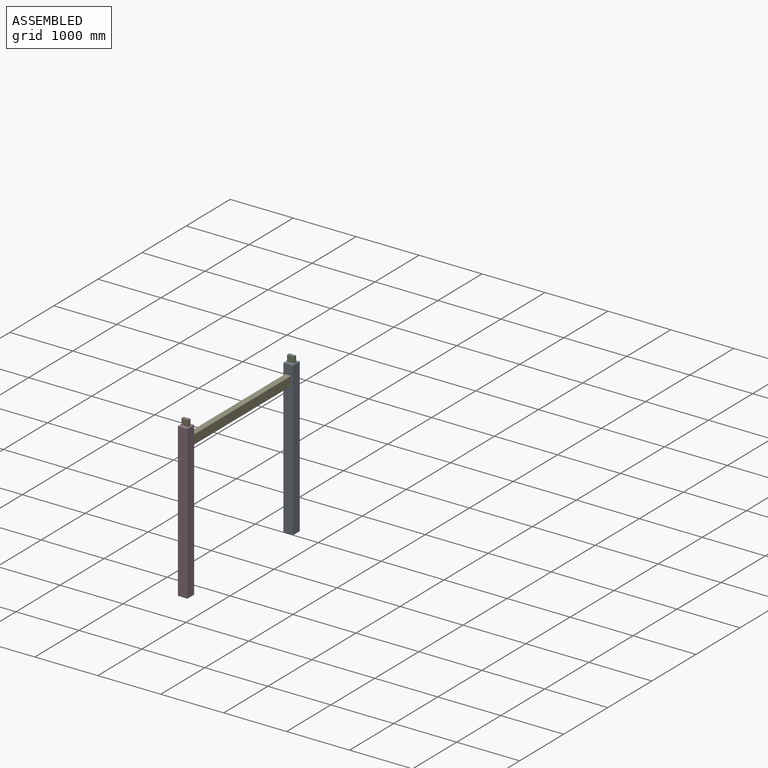
[diagram: assembled view]
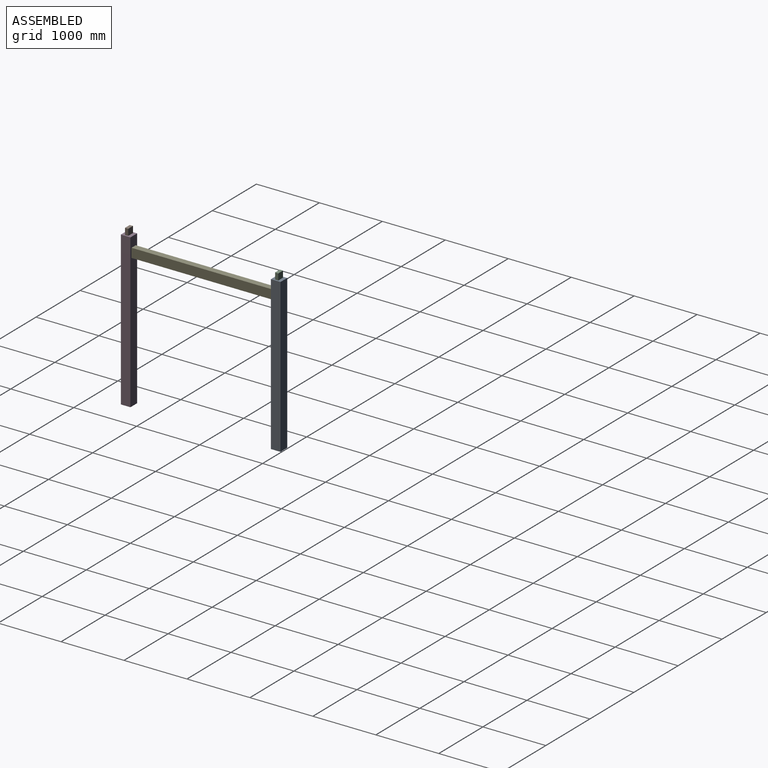
[diagram: assembled view, second angle]
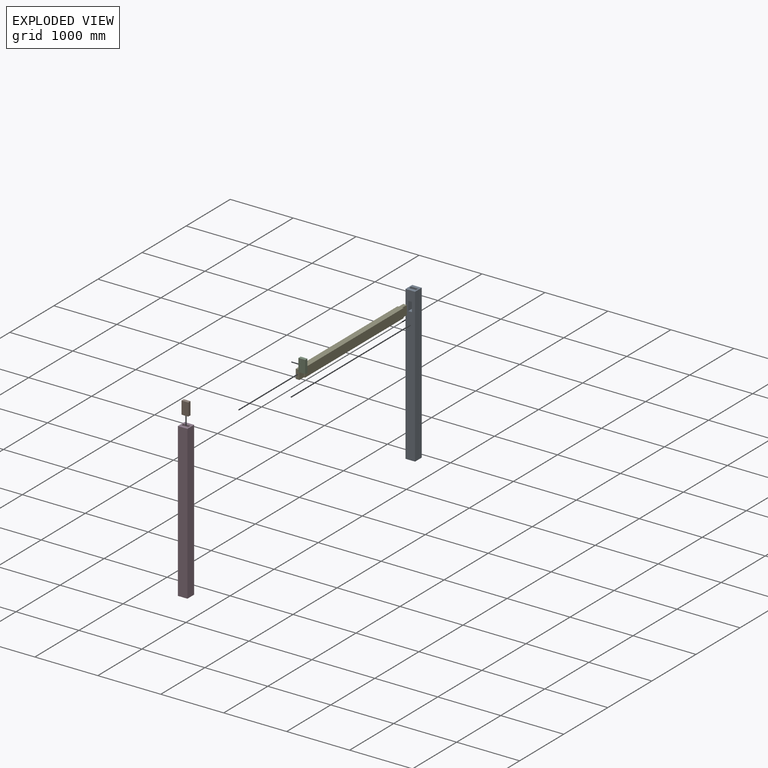
[diagram: exploded view]
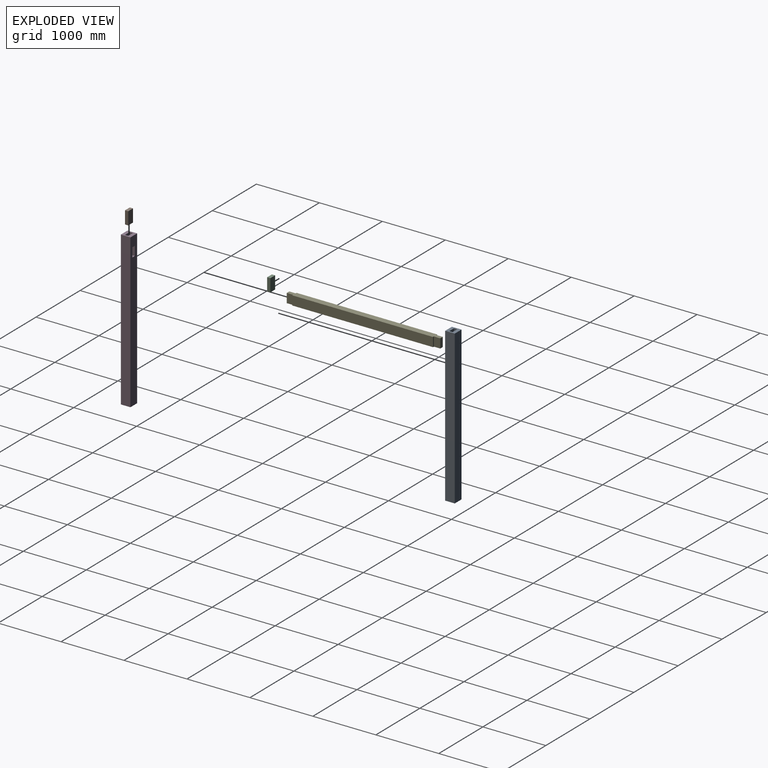
[diagram: exploded view, second angle]
ASSEMBLY  parts=5 mates=3
PART A: 16 faces, bbox 152.4x152.4x2438.4 mm
  f0: plane 152.4x152.4mm, normal (0,0,1), area 17741.9mm2, adj f1,f2,f3,f4,f11,f12,f13,f14
  f1: plane 2438.4x152.4mm, normal (0,-1,0), area 363265.4mm2, adj f0,f2,f4,f5,f6,f7,f8,f9
  f2: plane 2438.4x152.4mm, normal (1,0,0), area 371612.2mm2, adj f0,f1,f3,f5
  f3: plane 2438.4x152.4mm, normal (0,1,0), area 371612.2mm2, adj f0,f2,f4,f5
  f4: plane 2438.4x152.4mm, normal (-1,0,0), area 371612.2mm2, adj f0,f1,f3,f5
  f5: plane 152.4x152.4mm, normal (0,0,-1), area 23225.8mm2, adj f1,f2,f3,f4
  f6: plane 101.6x57.15mm, normal (0,0,1), area 5806.4mm2, adj f1,f7,f9,f10
  f7: plane 146.05x101.6mm, normal (-1,0,0), area 14838.7mm2, adj f1,f6,f8,f10
  f8: plane 101.6x57.15mm, normal (0,0,-1), area 5806.4mm2, adj f1,f7,f9,f10
  f9: plane 146.05x101.6mm, normal (1,0,0), area 14838.7mm2, adj f1,f6,f8,f10
  f10: plane 146.05x57.15mm, normal (0,-1,0), area 8346.8mm2, adj f6,f7,f8,f9
  f11: plane 107.95x101.6mm, normal (0,1,0), area 10967.7mm2, adj f0,f12,f14,f15
  f12: plane 101.6x50.8mm, normal (-1,0,0), area 5161.3mm2, adj f0,f11,f13,f15
  f13: plane 107.95x101.6mm, normal (0,-1,0), area 10967.7mm2, adj f0,f12,f14,f15
  f14: plane 101.6x50.8mm, normal (1,0,0), area 5161.3mm2, adj f0,f11,f13,f15
  f15: plane 107.95x50.8mm, normal (0,0,1), area 5483.9mm2, adj f11,f12,f13,f14
PART B: 6 faces, bbox 108x50.8x203.2 mm
  f0: plane 203.2x107.95mm, normal (0,-1,0), area 21935.4mm2, adj f1,f3,f4,f5
  f1: plane 203.2x50.8mm, normal (1,0,0), area 10322.6mm2, adj f0,f2,f4,f5
  f2: plane 203.2x107.95mm, normal (0,1,0), area 21935.4mm2, adj f1,f3,f4,f5
  f3: plane 203.2x50.8mm, normal (-1,0,0), area 10322.6mm2, adj f0,f2,f4,f5
  f4: plane 107.95x50.8mm, normal (0,0,1), area 5483.9mm2, adj f0,f1,f2,f3
  f5: plane 107.95x50.8mm, normal (0,0,-1), area 5483.9mm2, adj f0,f1,f2,f3
PART C: same geometry as B
PART D: same geometry as A
PART E: 14 faces, bbox 146.1x95.3x2438.4 mm
  f0: plane 2438.4x95.25mm, normal (-1,0,0), area 224515.7mm2, adj f1,f2,f4,f5,f6,f7,f8,f9
  f1: plane 146.05x57.15mm, normal (0,0,-1), area 8346.8mm2, adj f0,f3,f10,f12
  f2: plane 2235.2x146.05mm, normal (0,-1,0), area 326451mm2, adj f0,f3,f7,f13
  f3: plane 2438.4x95.25mm, normal (1,0,0), area 224515.7mm2, adj f1,f2,f4,f5,f6,f7,f8,f9
  f4: plane 2235.2x146.05mm, normal (0,1,0), area 326451mm2, adj f0,f3,f9,f11
  f5: plane 146.05x57.15mm, normal (0,0,1), area 8346.8mm2, adj f0,f3,f6,f8
  f6: plane 146.05x101.6mm, normal (0,-1,0), area 14838.7mm2, adj f0,f3,f5,f7
  f7: plane 146.05x19.05mm, normal (0,0,1), area 2782.3mm2, adj f0,f2,f3,f6
  f8: plane 146.05x101.6mm, normal (0,1,0), area 14838.7mm2, adj f0,f3,f5,f9
  f9: plane 146.05x19.05mm, normal (0,0,1), area 2782.3mm2, adj f0,f3,f4,f8
  f10: plane 146.05x101.6mm, normal (0,1,0), area 14838.7mm2, adj f0,f1,f3,f11
  f11: plane 146.05x19.05mm, normal (0,0,-1), area 2782.3mm2, adj f0,f3,f4,f10
  f12: plane 146.05x101.6mm, normal (0,-1,0), area 14838.7mm2, adj f0,f1,f3,f13
  f13: plane 146.05x19.05mm, normal (0,0,-1), area 2782.3mm2, adj f0,f2,f3,f12
PLACE A t=(-1406.92,-22.85,-35.04)mm fixed
PLACE B t=(-1412.35,-2410.45,2301.76)mm
PLACE C t=(-1406.92,-22.85,2301.76)mm
PLACE D rot(axis=(0,0,1),180deg) t=(-1412.35,-2410.45,-35.04)mm
PLACE E rot(axis=(0.58,0.58,-0.58),120deg) t=(-1409.63,2.55,2171.58)mm
MATE fastened E.f5 <-> D.f10  axis (0,-1,0) through (-1409.63,-2435.85,2171.58)mm
MATE fastened A.f10 <-> E.f1  axis (0,-1,0) through (-1409.63,2.55,2171.58)mm
MATE fastened B.f5 <-> D.f15  axis (0,0,-1) through (-1412.35,-2410.45,2301.76)mm
